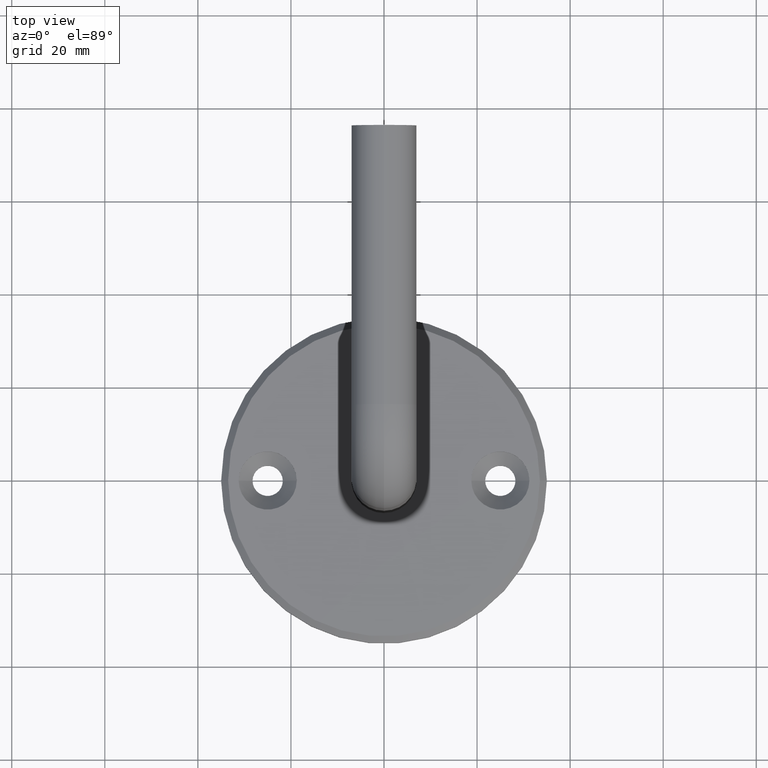
[diagram: clean part render]
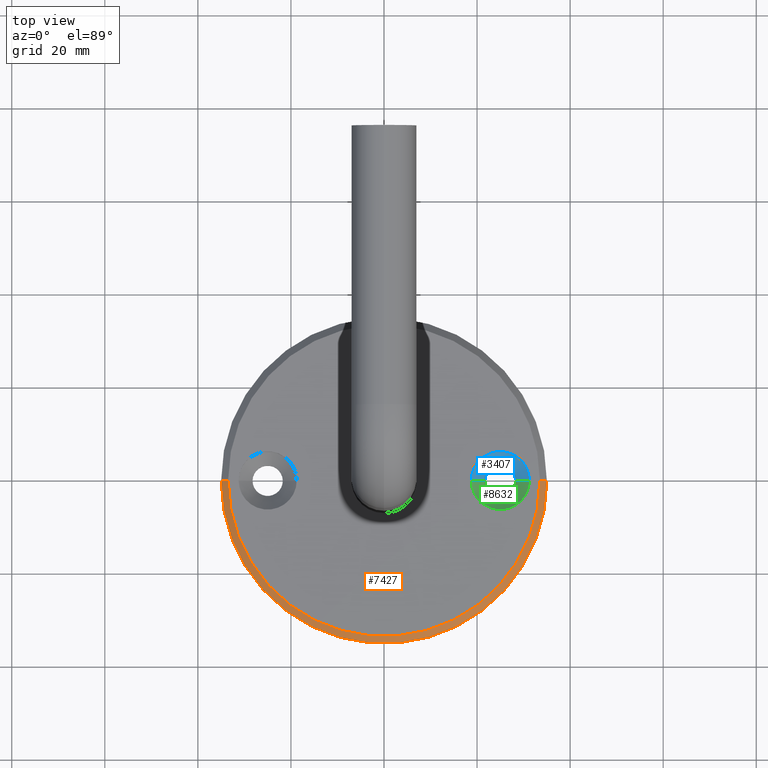
[diagram: same view with three faces highlighted in distinct colors, each labeled with its STEP entity id]
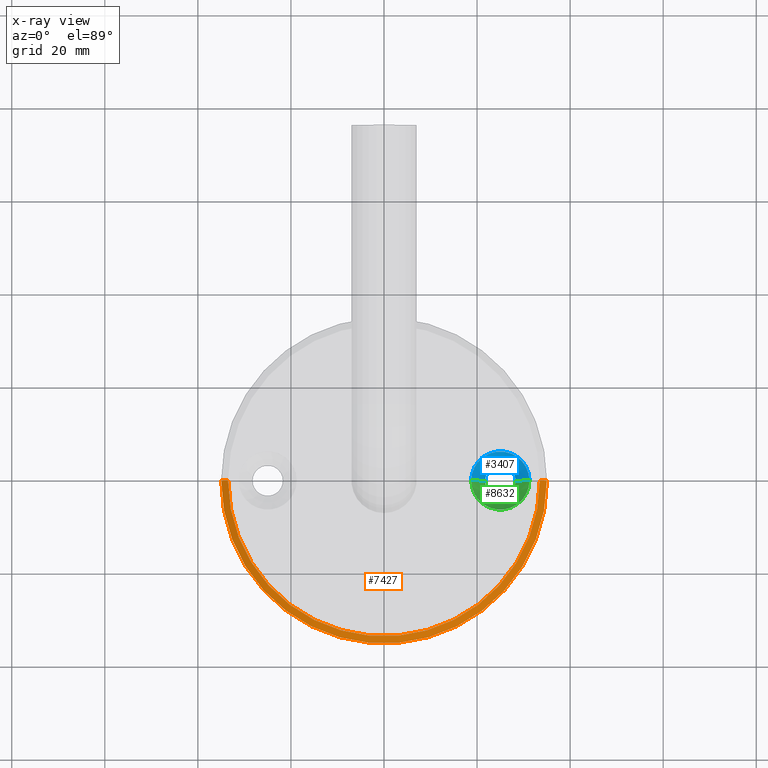
[diagram: x-ray of the same camera — body ghosted, the three highlighted faces saturated]
A machine part, top view with three faces highlighted in distinct colors.
The next image is the same camera in x-ray (body ghosted, the three faces saturated) — at least one of them is partly hidden behind the body in this view.
Their STEP definitions:

[orange] entity #7427 — the highlighted conical surface has half-angle 45 deg.
#1054 = VECTOR ( 'NONE', #4009, 1000.000000000000114 ) ;
#1763 = AXIS2_PLACEMENT_3D ( 'NONE', #8344, #6423, #8859 ) ;
#2064 = EDGE_CURVE ( 'NONE', #12151, #12645, #5441, .T. ) ;
#2143 = CONICAL_SURFACE ( 'NONE', #9850, 33.50000000000002842, 0.7853981633974482790 ) ;
#2181 = DIRECTION ( 'NONE',  ( 0.000000000000000000, 0.000000000000000000, -1.000000000000000000 ) ) ;
#2660 = CARTESIAN_POINT ( 'NONE',  ( 33.50000000000002842, 4.102566777143636929E-15, 6.000000000000000000 ) ) ;
#3966 = EDGE_LOOP ( 'NONE', ( #14877, #4251, #5582, #13466 ) ) ;
#4009 = DIRECTION ( 'NONE',  ( -0.7071067811865474617, 0.000000000000000000, -0.7071067811865474617 ) ) ;
#4251 = ORIENTED_EDGE ( 'NONE', *, *, #7416, .F. ) ;
#4387 = DIRECTION ( 'NONE',  ( -1.000000000000000000, 0.000000000000000000, 0.000000000000000000 ) ) ;
#5392 = FACE_OUTER_BOUND ( 'NONE', #3966, .T. ) ;
#5441 = LINE ( 'NONE', #11219, #1054 ) ;
#5582 = ORIENTED_EDGE ( 'NONE', *, *, #2064, .T. ) ;
#6207 = DIRECTION ( 'NONE',  ( 0.000000000000000000, 0.000000000000000000, -1.000000000000000000 ) ) ;
#6423 = DIRECTION ( 'NONE',  ( 0.000000000000000000, 0.000000000000000000, 1.000000000000000000 ) ) ;
#6673 = VECTOR ( 'NONE', #8513, 1000.000000000000114 ) ;
#7007 = EDGE_CURVE ( 'NONE', #14129, #12645, #9922, .T. ) ;
#7241 = CIRCLE ( 'NONE', #1763, 33.50000000000002842 ) ;
#7335 = CARTESIAN_POINT ( 'NONE',  ( -35.00000000000000711, 0.000000000000000000, 4.500000000000019540 ) ) ;
#7416 = EDGE_CURVE ( 'NONE', #12151, #11421, #7241, .T. ) ;
#7427 = ADVANCED_FACE ( 'NONE', ( #5392 ), #2143, .T. ) ;
#8344 = CARTESIAN_POINT ( 'NONE',  ( 0.000000000000000000, 0.000000000000000000, 6.000000000000000000 ) ) ;
#8353 = CARTESIAN_POINT ( 'NONE',  ( -33.50000000000002842, 0.000000000000000000, 6.000000000000000000 ) ) ;
#8513 = DIRECTION ( 'NONE',  ( 0.7071067811865474617, 8.659560562354932858E-17, -0.7071067811865474617 ) ) ;
#8688 = CARTESIAN_POINT ( 'NONE',  ( 0.000000000000000000, 0.000000000000000000, 4.500000000000019540 ) ) ;
#8859 = DIRECTION ( 'NONE',  ( 1.000000000000000000, 0.000000000000000000, 0.000000000000000000 ) ) ;
#9242 = EDGE_CURVE ( 'NONE', #11421, #14129, #14183, .T. ) ;
#9808 = CARTESIAN_POINT ( 'NONE',  ( 0.000000000000000000, 0.000000000000000000, 6.000000000000000000 ) ) ;
#9850 = AXIS2_PLACEMENT_3D ( 'NONE', #9808, #2181, #4387 ) ;
#9894 = DIRECTION ( 'NONE',  ( 1.000000000000000000, 0.000000000000000000, 0.000000000000000000 ) ) ;
#9922 = CIRCLE ( 'NONE', #14151, 35.00000000000000711 ) ;
#10852 = CARTESIAN_POINT ( 'NONE',  ( 35.00000000000000711, 4.286263797015737285E-15, 4.500000000000019540 ) ) ;
#11219 = CARTESIAN_POINT ( 'NONE',  ( -33.50000000000002842, 0.000000000000000000, 6.000000000000000000 ) ) ;
#11421 = VERTEX_POINT ( 'NONE', #12654 ) ;
#12151 = VERTEX_POINT ( 'NONE', #8353 ) ;
#12645 = VERTEX_POINT ( 'NONE', #7335 ) ;
#12654 = CARTESIAN_POINT ( 'NONE',  ( 33.50000000000002842, 4.194415287079687502E-15, 6.000000000000000000 ) ) ;
#13466 = ORIENTED_EDGE ( 'NONE', *, *, #7007, .F. ) ;
#14129 = VERTEX_POINT ( 'NONE', #10852 ) ;
#14151 = AXIS2_PLACEMENT_3D ( 'NONE', #8688, #6207, #9894 ) ;
#14183 = LINE ( 'NONE', #2660, #6673 ) ;
#14877 = ORIENTED_EDGE ( 'NONE', *, *, #9242, .F. ) ;

[blue] entity #3407 — the highlighted conical surface has half-angle 45 deg.
#97 = ORIENTED_EDGE ( 'NONE', *, *, #15195, .F. ) ;
#152 = AXIS2_PLACEMENT_3D ( 'NONE', #10738, #14206, #3425 ) ;
#1098 = EDGE_CURVE ( 'NONE', #5382, #6061, #3357, .T. ) ;
#1216 = EDGE_LOOP ( 'NONE', ( #97, #1440, #12617, #5924 ) ) ;
#1440 = ORIENTED_EDGE ( 'NONE', *, *, #14643, .F. ) ;
#1456 = LINE ( 'NONE', #7051, #2975 ) ;
#1878 = CARTESIAN_POINT ( 'NONE',  ( 18.75000000000000355, 7.654042494670955634E-16, 4.800000000000000711 ) ) ;
#2009 = DIRECTION ( 'NONE',  ( 0.7071067811865466846, 0.000000000000000000, 0.7071067811865483499 ) ) ;
#2127 = AXIS2_PLACEMENT_3D ( 'NONE', #5508, #15088, #14168 ) ;
#2893 = CIRCLE ( 'NONE', #152, 6.249999999999998224 ) ;
#2975 = VECTOR ( 'NONE', #14318, 1000.000000000000000 ) ;
#3357 = LINE ( 'NONE', #11897, #8250 ) ;
#3407 = ADVANCED_FACE ( 'NONE', ( #7080 ), #8829, .F. ) ;
#3425 = DIRECTION ( 'NONE',  ( 1.000000000000000000, 0.000000000000000000, 0.000000000000000000 ) ) ;
#5143 = CARTESIAN_POINT ( 'NONE',  ( 31.25000000000000000, 0.000000000000000000, 4.800000000000000711 ) ) ;
#5166 = DIRECTION ( 'NONE',  ( 1.000000000000000000, 0.000000000000000000, 0.000000000000000000 ) ) ;
#5347 = AXIS2_PLACEMENT_3D ( 'NONE', #14896, #10066, #5166 ) ;
#5382 = VERTEX_POINT ( 'NONE', #11837 ) ;
#5508 = CARTESIAN_POINT ( 'NONE',  ( 25.00000000000000000, 0.000000000000000000, 4.800000000000000711 ) ) ;
#5794 = CIRCLE ( 'NONE', #5347, 3.250000000000002665 ) ;
#5924 = ORIENTED_EDGE ( 'NONE', *, *, #10846, .T. ) ;
#6061 = VERTEX_POINT ( 'NONE', #5143 ) ;
#7051 = CARTESIAN_POINT ( 'NONE',  ( 18.75000000000000355, 7.654042494670955634E-16, 4.800000000000000711 ) ) ;
#7080 = FACE_OUTER_BOUND ( 'NONE', #1216, .T. ) ;
#7654 = VERTEX_POINT ( 'NONE', #1878 ) ;
#8250 = VECTOR ( 'NONE', #2009, 1000.000000000000000 ) ;
#8829 = CONICAL_SURFACE ( 'NONE', #2127, 6.249999999999998224, 0.7853981633974471688 ) ;
#9942 = CARTESIAN_POINT ( 'NONE',  ( 21.75000000000000000, 3.980102097228903655E-16, 1.799999999999997824 ) ) ;
#10066 = DIRECTION ( 'NONE',  ( -0.000000000000000000, -0.000000000000000000, 1.000000000000000000 ) ) ;
#10738 = CARTESIAN_POINT ( 'NONE',  ( 25.00000000000000000, 0.000000000000000000, 4.800000000000000711 ) ) ;
#10846 = EDGE_CURVE ( 'NONE', #6061, #7654, #2893, .T. ) ;
#11837 = CARTESIAN_POINT ( 'NONE',  ( 28.25000000000000355, 0.000000000000000000, 1.799999999999997824 ) ) ;
#11897 = CARTESIAN_POINT ( 'NONE',  ( 31.25000000000000000, 0.000000000000000000, 4.800000000000000711 ) ) ;
#12617 = ORIENTED_EDGE ( 'NONE', *, *, #1098, .T. ) ;
#13927 = VERTEX_POINT ( 'NONE', #9942 ) ;
#14168 = DIRECTION ( 'NONE',  ( 1.000000000000000000, 0.000000000000000000, 0.000000000000000000 ) ) ;
#14206 = DIRECTION ( 'NONE',  ( -0.000000000000000000, -0.000000000000000000, 1.000000000000000000 ) ) ;
#14318 = DIRECTION ( 'NONE',  ( -0.7071067811865466846, 8.659560562354922997E-17, 0.7071067811865483499 ) ) ;
#14643 = EDGE_CURVE ( 'NONE', #5382, #13927, #5794, .T. ) ;
#14896 = CARTESIAN_POINT ( 'NONE',  ( 25.00000000000000000, 0.000000000000000000, 1.799999999999997824 ) ) ;
#15088 = DIRECTION ( 'NONE',  ( -0.000000000000000000, -0.000000000000000000, 1.000000000000000000 ) ) ;
#15195 = EDGE_CURVE ( 'NONE', #13927, #7654, #1456, .T. ) ;

[green] entity #8632 — the highlighted conical surface has half-angle 45 deg.
#246 = DIRECTION ( 'NONE',  ( -0.000000000000000000, -0.000000000000000000, 1.000000000000000000 ) ) ;
#1029 = CARTESIAN_POINT ( 'NONE',  ( 25.00000000000000000, 0.000000000000000000, 4.800000000000000711 ) ) ;
#1098 = EDGE_CURVE ( 'NONE', #5382, #6061, #3357, .T. ) ;
#1400 = ORIENTED_EDGE ( 'NONE', *, *, #5984, .T. ) ;
#1456 = LINE ( 'NONE', #7051, #2975 ) ;
#1878 = CARTESIAN_POINT ( 'NONE',  ( 18.75000000000000355, 7.654042494670955634E-16, 4.800000000000000711 ) ) ;
#2009 = DIRECTION ( 'NONE',  ( 0.7071067811865466846, 0.000000000000000000, 0.7071067811865483499 ) ) ;
#2785 = AXIS2_PLACEMENT_3D ( 'NONE', #6362, #246, #6248 ) ;
#2975 = VECTOR ( 'NONE', #14318, 1000.000000000000000 ) ;
#3357 = LINE ( 'NONE', #11897, #8250 ) ;
#4381 = CIRCLE ( 'NONE', #2785, 3.250000000000002665 ) ;
#5143 = CARTESIAN_POINT ( 'NONE',  ( 31.25000000000000000, 0.000000000000000000, 4.800000000000000711 ) ) ;
#5382 = VERTEX_POINT ( 'NONE', #11837 ) ;
#5791 = DIRECTION ( 'NONE',  ( 1.000000000000000000, 0.000000000000000000, 0.000000000000000000 ) ) ;
#5984 = EDGE_CURVE ( 'NONE', #7654, #6061, #15050, .T. ) ;
#6061 = VERTEX_POINT ( 'NONE', #5143 ) ;
#6248 = DIRECTION ( 'NONE',  ( 1.000000000000000000, 0.000000000000000000, 0.000000000000000000 ) ) ;
#6362 = CARTESIAN_POINT ( 'NONE',  ( 25.00000000000000000, 0.000000000000000000, 1.799999999999997824 ) ) ;
#6417 = DIRECTION ( 'NONE',  ( 1.000000000000000000, 0.000000000000000000, 0.000000000000000000 ) ) ;
#6508 = CONICAL_SURFACE ( 'NONE', #13972, 6.249999999999998224, 0.7853981633974471688 ) ;
#6706 = ORIENTED_EDGE ( 'NONE', *, *, #1098, .F. ) ;
#7051 = CARTESIAN_POINT ( 'NONE',  ( 18.75000000000000355, 7.654042494670955634E-16, 4.800000000000000711 ) ) ;
#7654 = VERTEX_POINT ( 'NONE', #1878 ) ;
#7982 = ORIENTED_EDGE ( 'NONE', *, *, #10481, .F. ) ;
#8250 = VECTOR ( 'NONE', #2009, 1000.000000000000000 ) ;
#8632 = ADVANCED_FACE ( 'NONE', ( #12519 ), #6508, .F. ) ;
#8683 = CARTESIAN_POINT ( 'NONE',  ( 25.00000000000000000, 0.000000000000000000, 4.800000000000000711 ) ) ;
#9481 = DIRECTION ( 'NONE',  ( -0.000000000000000000, -0.000000000000000000, 1.000000000000000000 ) ) ;
#9942 = CARTESIAN_POINT ( 'NONE',  ( 21.75000000000000000, 3.980102097228903655E-16, 1.799999999999997824 ) ) ;
#10481 = EDGE_CURVE ( 'NONE', #13927, #5382, #4381, .T. ) ;
#11837 = CARTESIAN_POINT ( 'NONE',  ( 28.25000000000000355, 0.000000000000000000, 1.799999999999997824 ) ) ;
#11897 = CARTESIAN_POINT ( 'NONE',  ( 31.25000000000000000, 0.000000000000000000, 4.800000000000000711 ) ) ;
#12249 = AXIS2_PLACEMENT_3D ( 'NONE', #8683, #13625, #6417 ) ;
#12519 = FACE_OUTER_BOUND ( 'NONE', #14045, .T. ) ;
#13008 = ORIENTED_EDGE ( 'NONE', *, *, #15195, .T. ) ;
#13625 = DIRECTION ( 'NONE',  ( -0.000000000000000000, -0.000000000000000000, 1.000000000000000000 ) ) ;
#13927 = VERTEX_POINT ( 'NONE', #9942 ) ;
#13972 = AXIS2_PLACEMENT_3D ( 'NONE', #1029, #9481, #5791 ) ;
#14045 = EDGE_LOOP ( 'NONE', ( #7982, #13008, #1400, #6706 ) ) ;
#14318 = DIRECTION ( 'NONE',  ( -0.7071067811865466846, 8.659560562354922997E-17, 0.7071067811865483499 ) ) ;
#15050 = CIRCLE ( 'NONE', #12249, 6.249999999999998224 ) ;
#15195 = EDGE_CURVE ( 'NONE', #13927, #7654, #1456, .T. ) ;